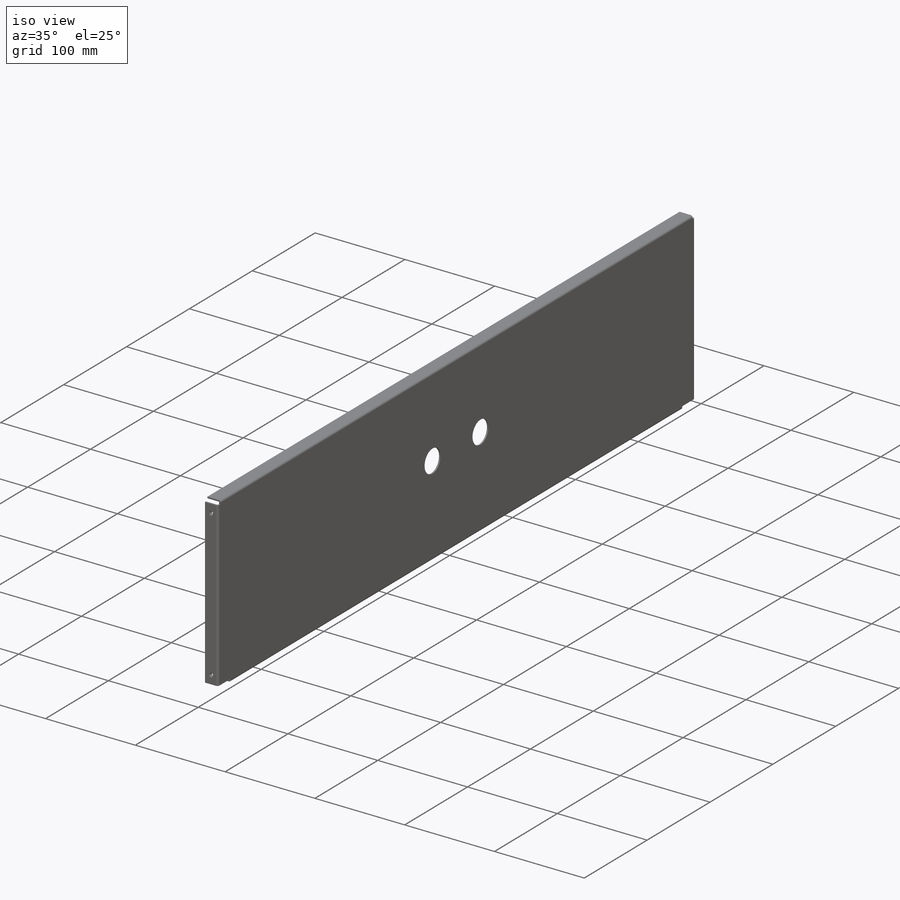
[diagram: iso view]
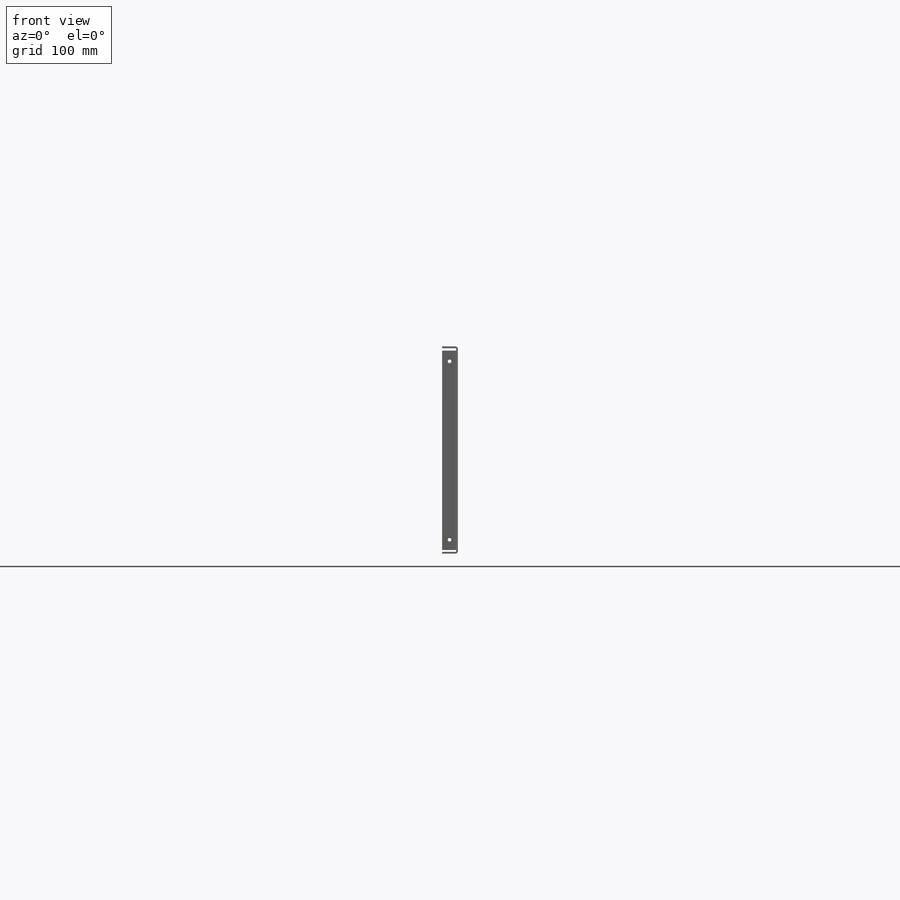
[diagram: front view]
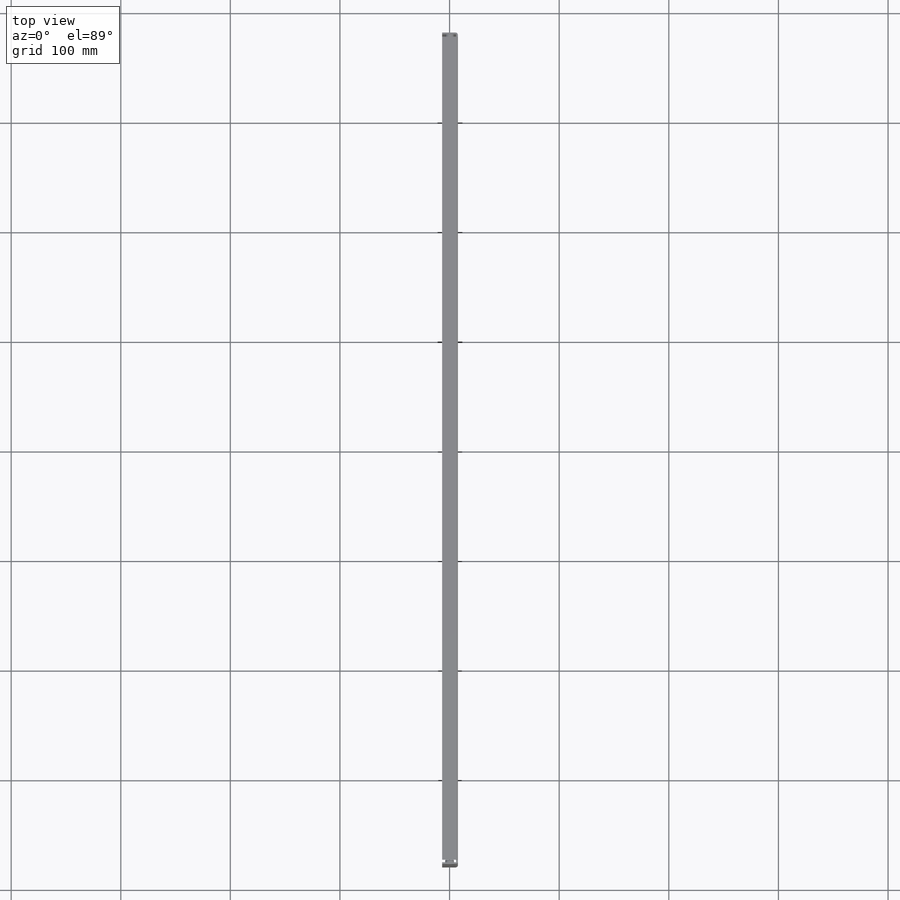
[diagram: top view]
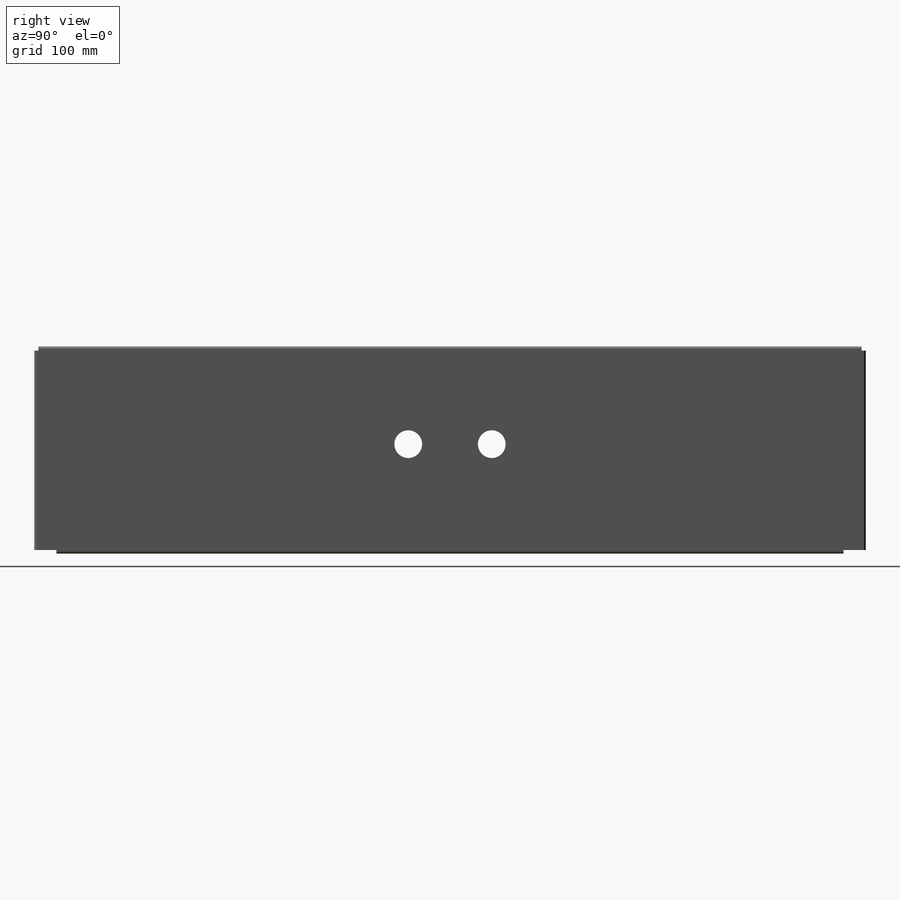
[diagram: right view]
SOLIDWORKS PART (.sldprt)
format: sldprt  version: not decoded by parser v0  size: 450,560 bytes
history: native  units: mm
features: sketch x5, cut_extrude x2, move_body x2, material x1, extrude x1, shell x1, fillet x1, hole x1, mirror x1 + 4 further entries (+20 scaffold rows collapsed; 10 parser-record rows omitted)
feature tree (49):
  scaffold x20  (default folders/planes/origin — collapsed)
  material  "5052-H32"
  "Origin"  ID=392984584
  sketch  "Sketch1"  dims[D1=14.478mm D2=758.698mm D3=6.858mm]
  extrude  "Boss-Extrude1"  Depth=188.976mm
  shell  "Shell1"  Thickness=1.6002mm
  sketch  "Sketch2"  dims[D1=25.4mm D2=76.2mm D3=99.822mm]
  cut_extrude  "Cut-Extrude1"  [1 undecoded]
  sketch  "Sketch3"  dims[c1.D1=3.81mm c1.D2=201.5998mm c2.D1=5.4102mm c2.D2=3.81mm c2.D3=20.32mm c2.D4=3.302mm]
  cut_extrude  "Cut-Extrude2"  [1 undecoded]
  fillet  "Fillet2"  Radius=2.286mm
  hole  "#3 (0.213) Diameter Hole1"  Diameter=5.4102mm Depth=1.6002mm
  sketch  "Sketch8"  dims[c1.D1=9.398mm c1.D2=9.398mm c1.D3=~13.290779mm c1.D4=9.398mm c2.D2=162.814mm c2.D3=12.7mm]
  sketch  "Sketch7"  dims[hole-wizard template sketch: 59 standard entries collapsed; hole parameters kept: c18.Thru Hole Dia.=5.4102mm c18.Thru Hole Depth=1.6002mm]
  mirror  "Mirror1"
  "CLS-832-2 (Penn Engineering)"
  parser-record x10  (decoder bookkeeping rows leaked as tree rows — omitted from the tree; the rows remain in map.json)
  move_body  "Body-Move/Copy6"
  "CLS-832-2 (Penn Engineering)2"
  move_body  "Body-Move/Copy8"
  "Sketch-Pattern2"
decode coverage: 9 of 14 modeling features carry decoded parameters; 4 rows unclassified (native names shown)
note: ~ marks probable driven/reference dimensions
note: 2 parameter values undecoded
note: suppression state not decoded; provenance and decode notes live in map.json
